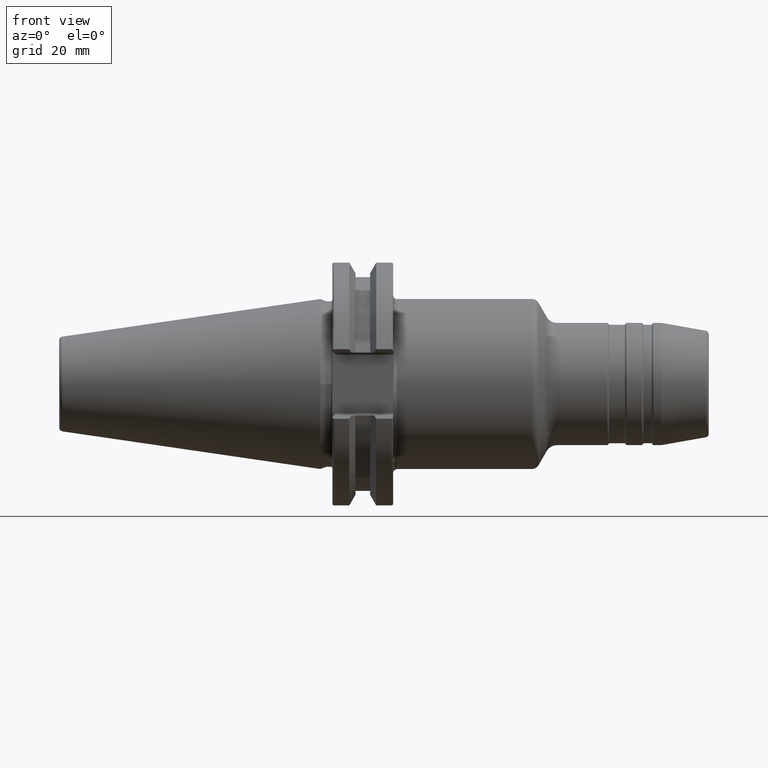
[diagram: clean part render]
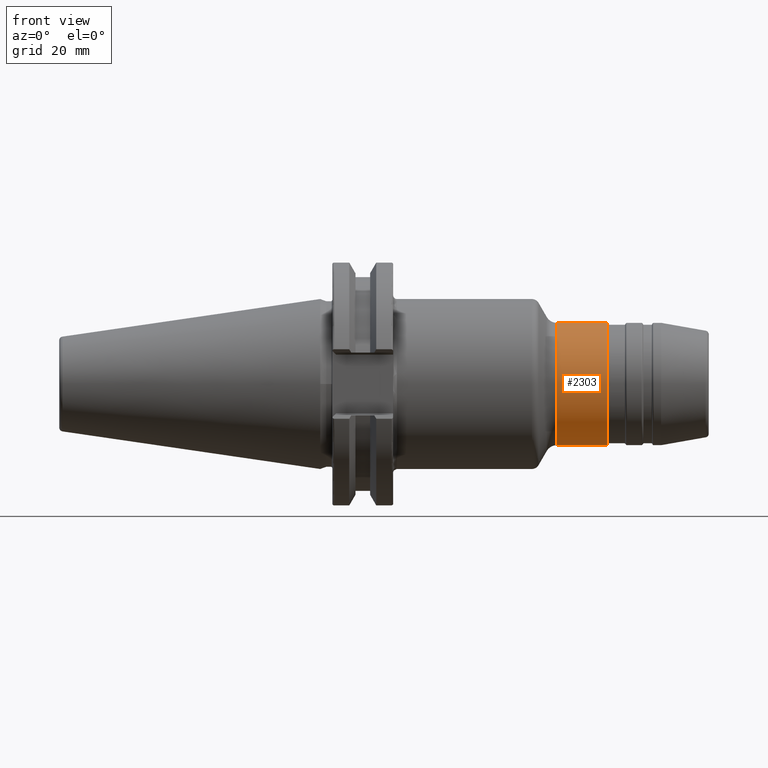
[diagram: same view with one face highlighted and labeled with its STEP entity id]
A machine part, front view. The second image highlights one B-rep face of the part: STEP entity #2303.
In plain terms, the highlighted cylindrical surface (partial cylindrical patch) has radius 16 mm, axis along (1, 0, 0).
Its self-contained STEP definition (entity closure, byte-faithful):
#308=CARTESIAN_POINT('',(6.185705080757E1,0.E0,0.E0));
#309=DIRECTION('',(-1.E0,0.E0,0.E0));
#310=DIRECTION('',(0.E0,0.E0,-1.E0));
#311=AXIS2_PLACEMENT_3D('',#308,#309,#310);
#313=DIRECTION('',(-1.E0,0.E0,0.E0));
#314=VECTOR('',#313,1.313286389632E1);
#315=CARTESIAN_POINT('',(7.498991470389E1,0.E0,-1.6E1));
#316=LINE('',#315,#314);
#317=DIRECTION('',(-1.E0,0.E0,0.E0));
#318=VECTOR('',#317,1.313286389632E1);
#319=CARTESIAN_POINT('',(7.498991470389E1,0.E0,1.6E1));
#320=LINE('',#319,#318);
#321=CARTESIAN_POINT('',(7.498991470389E1,0.E0,0.E0));
#322=DIRECTION('',(-1.E0,0.E0,0.E0));
#323=DIRECTION('',(0.E0,0.E0,-1.E0));
#324=AXIS2_PLACEMENT_3D('',#321,#322,#323);
#1724=CARTESIAN_POINT('',(7.498991470389E1,0.E0,-1.6E1));
#1725=VERTEX_POINT('',#1724);
#1726=CARTESIAN_POINT('',(6.185705080757E1,0.E0,-1.6E1));
#1727=VERTEX_POINT('',#1726);
#1780=CARTESIAN_POINT('',(7.498991470389E1,0.E0,1.6E1));
#1781=VERTEX_POINT('',#1780);
#1782=CARTESIAN_POINT('',(6.185705080757E1,0.E0,1.6E1));
#1783=VERTEX_POINT('',#1782);
#2289=CARTESIAN_POINT('',(1.49475E1,0.E0,0.E0));
#2290=DIRECTION('',(1.E0,0.E0,0.E0));
#2291=DIRECTION('',(0.E0,0.E0,1.E0));
#2292=AXIS2_PLACEMENT_3D('',#2289,#2290,#2291);
#2293=CYLINDRICAL_SURFACE('',#2292,1.6E1);
#2295=ORIENTED_EDGE('',*,*,#2294,.T.);
#2296=ORIENTED_EDGE('',*,*,#2284,.T.);
#2298=ORIENTED_EDGE('',*,*,#2297,.F.);
#2300=ORIENTED_EDGE('',*,*,#2299,.F.);
#2301=EDGE_LOOP('',(#2295,#2296,#2298,#2300));
#2302=FACE_OUTER_BOUND('',#2301,.F.);
#2303=ADVANCED_FACE('',(#2302),#2293,.T.);
#312=CIRCLE('',#311,1.6E1);
#325=CIRCLE('',#324,1.6E1);
#2284=EDGE_CURVE('',#1727,#1783,#312,.T.);
#2294=EDGE_CURVE('',#1725,#1727,#316,.T.);
#2297=EDGE_CURVE('',#1781,#1783,#320,.T.);
#2299=EDGE_CURVE('',#1725,#1781,#325,.T.);